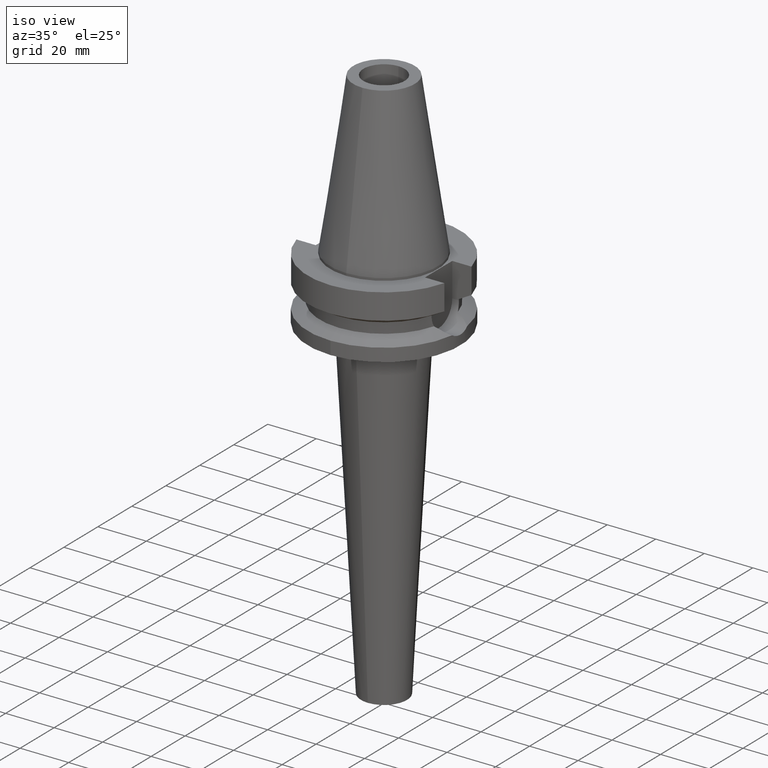
[diagram: clean part render]
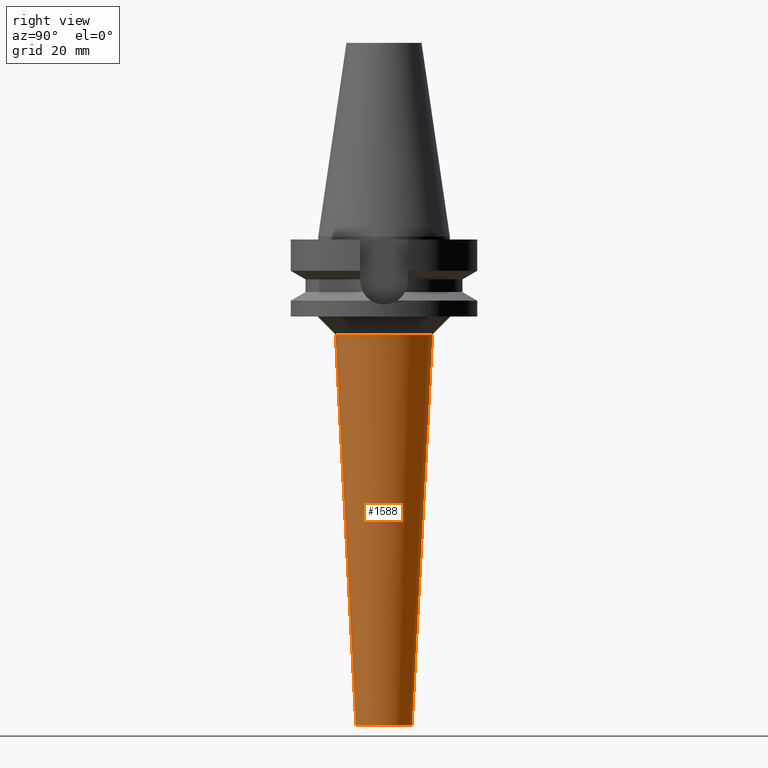
[diagram: tour spotlight — one face highlighted and labeled with its STEP entity id]
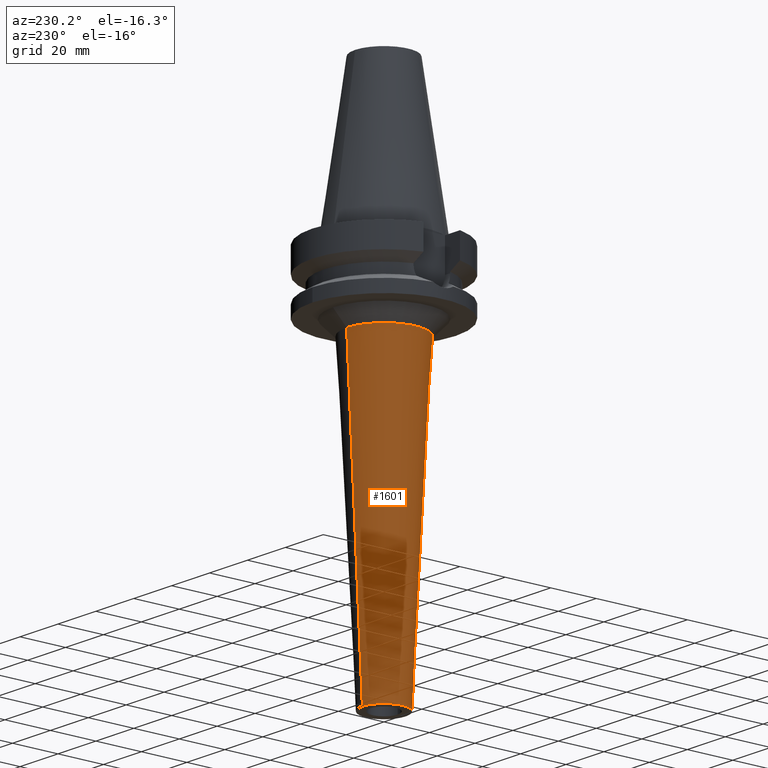
[diagram: tour spotlight — one face highlighted and labeled with its STEP entity id]
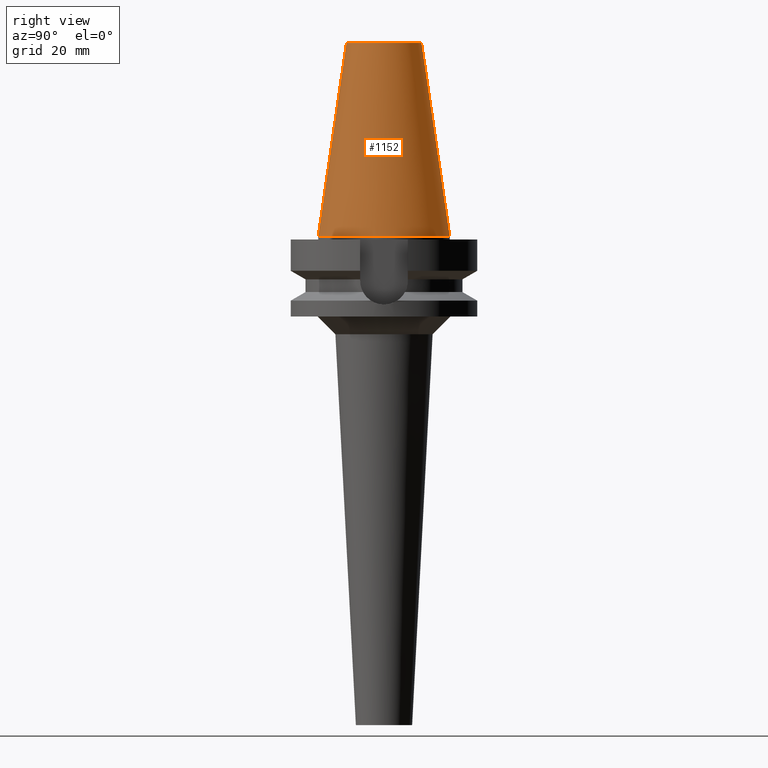
[diagram: tour spotlight — one face highlighted and labeled with its STEP entity id]
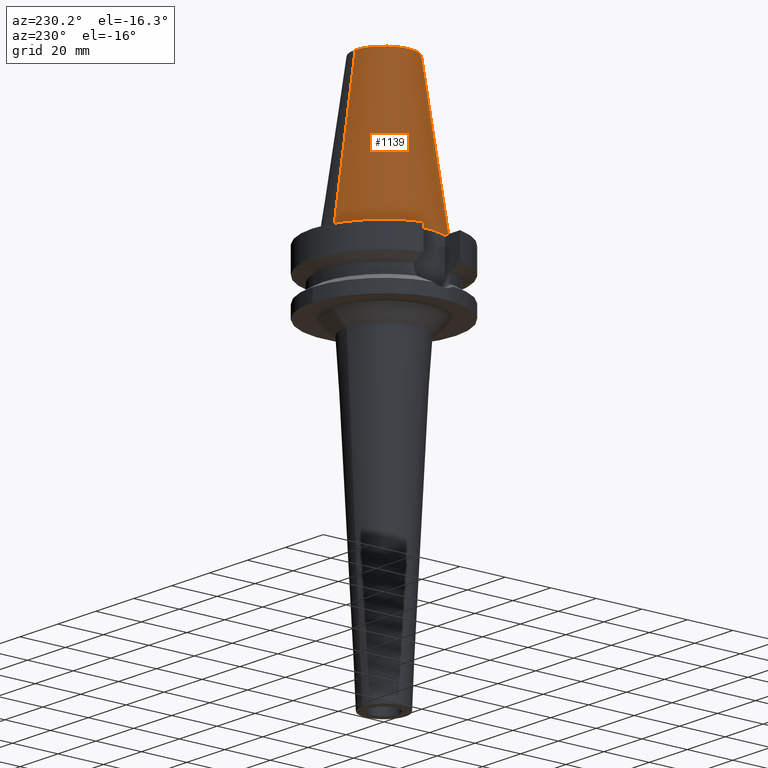
[diagram: tour spotlight — one face highlighted and labeled with its STEP entity id]
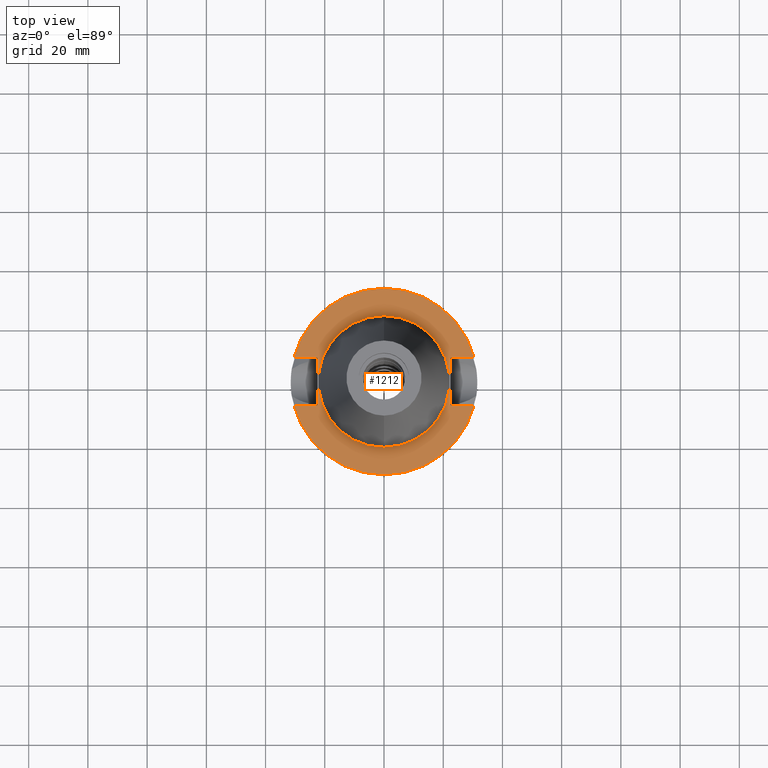
[diagram: tour spotlight — one face highlighted and labeled with its STEP entity id]
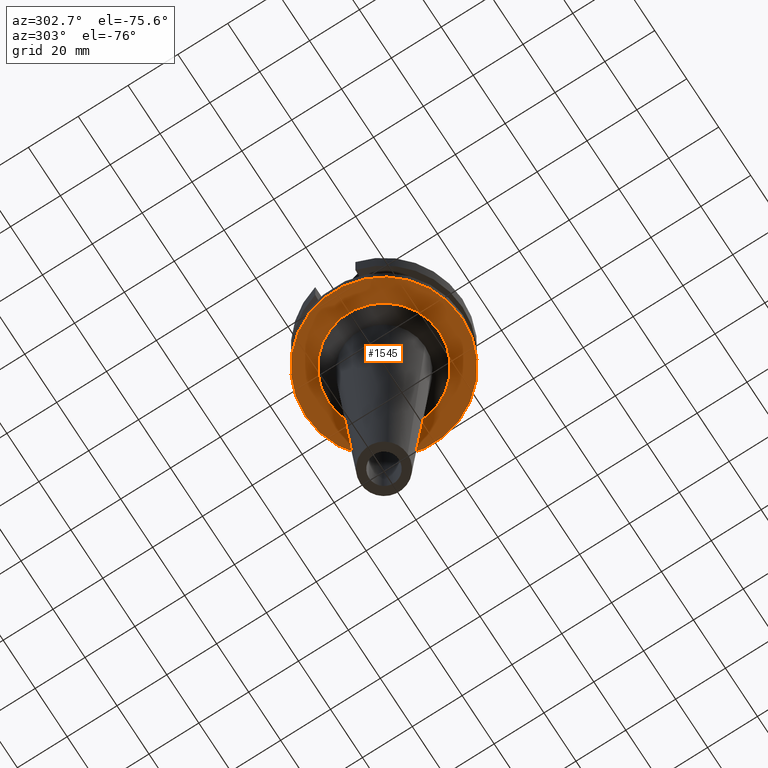
[diagram: tour spotlight — one face highlighted and labeled with its STEP entity id]
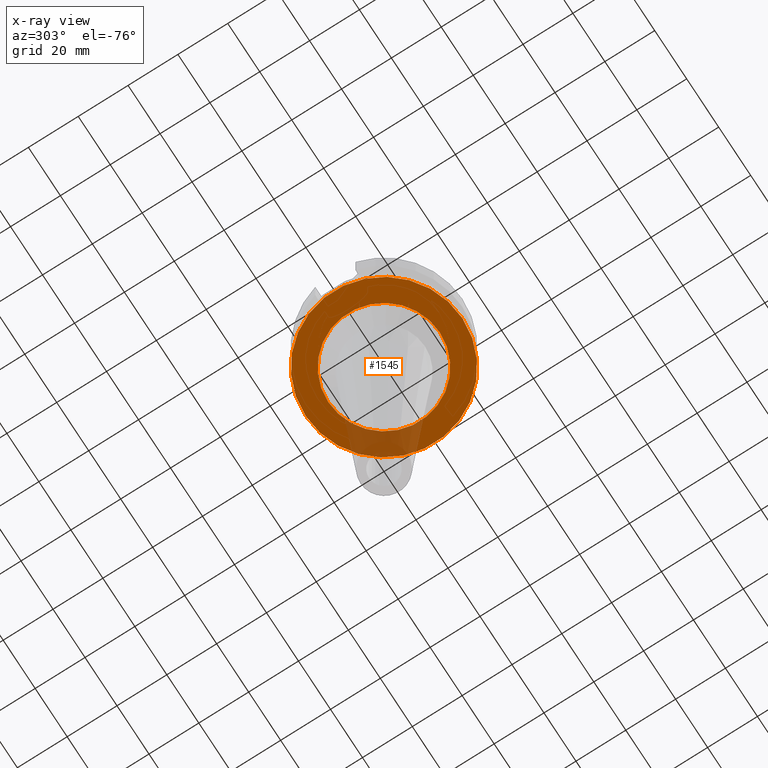
[diagram: x-ray of the same camera — body ghosted, this tour face saturated]
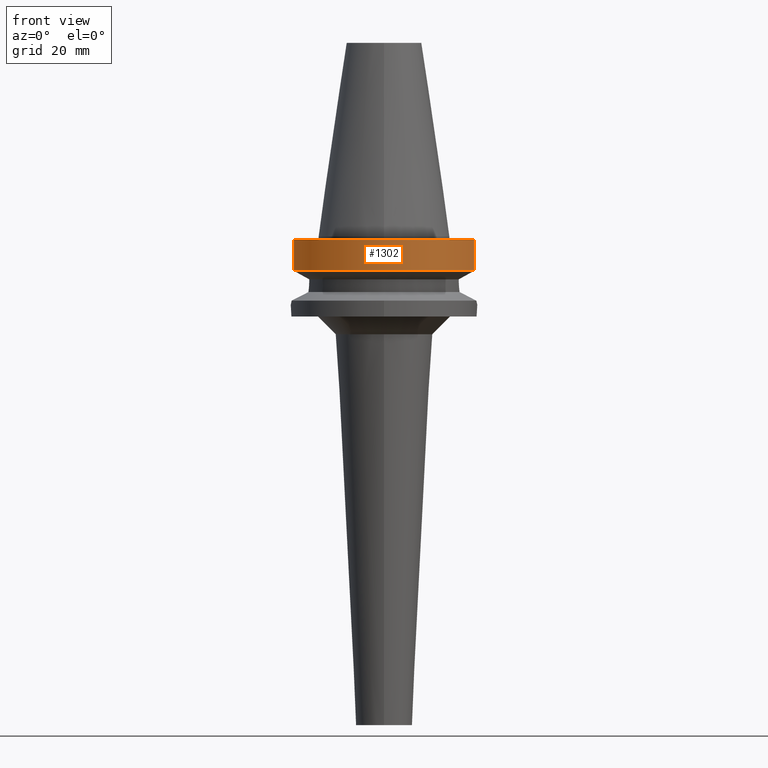
[diagram: tour spotlight — one face highlighted and labeled with its STEP entity id]
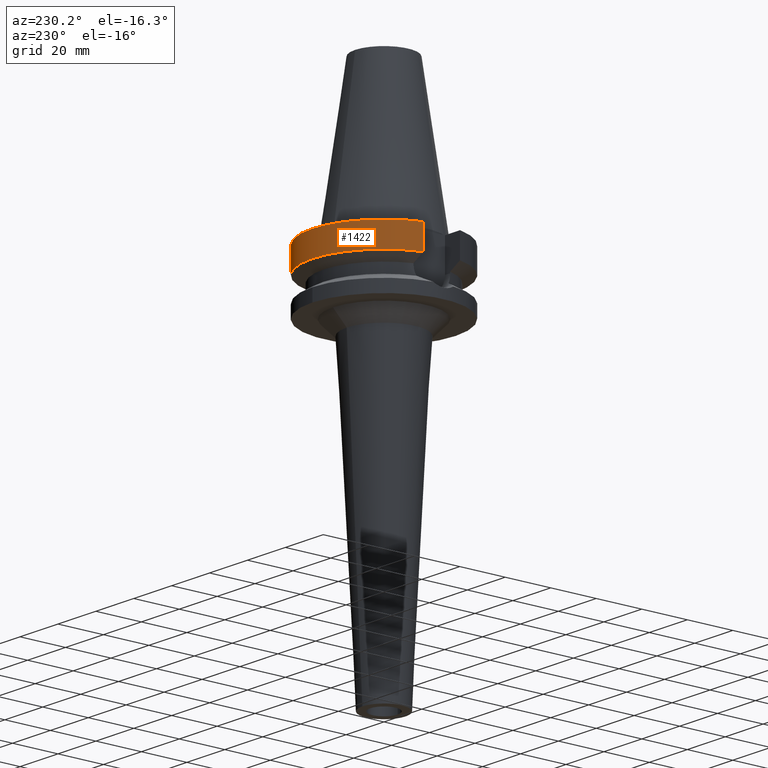
[diagram: tour spotlight — one face highlighted and labeled with its STEP entity id]
A machine part: a face-by-face anatomy tour. The part has 46 B-rep faces; the first image is the clean iso view, then the 8 largest visible faces are spotlighted one at a time (largest first), each with its STEP entity span.

Face 1 — right view, entity #1588. In plain terms, the highlighted conical surface has half-angle 3 deg.
Definition (entity closure, byte-faithful):
#676=DIRECTION('',(0.E0,-5.233595624294E-2,-9.986295347546E-1));
#677=VECTOR('',#676,1.321811496717E2);
#678=CARTESIAN_POINT('',(0.E0,1.641782686536E1,-3.3E1));
#679=LINE('',#678,#677);
#683=CARTESIAN_POINT('',(0.E0,0.E0,-3.3E1));
#684=DIRECTION('',(0.E0,0.E0,1.E0));
#685=DIRECTION('',(0.E0,-1.E0,0.E0));
#686=AXIS2_PLACEMENT_3D('',#683,#684,#685);
#691=DIRECTION('',(0.E0,5.233595624294E-2,-9.986295347546E-1));
#692=VECTOR('',#691,1.321811496717E2);
#693=CARTESIAN_POINT('',(0.E0,-1.641782686536E1,-3.3E1));
#694=LINE('',#693,#692);
#698=CARTESIAN_POINT('',(0.E0,0.E0,-1.65E2));
#699=DIRECTION('',(0.E0,0.E0,1.E0));
#700=DIRECTION('',(0.E0,-1.E0,0.E0));
#701=AXIS2_PLACEMENT_3D('',#698,#699,#700);
#1006=CARTESIAN_POINT('',(0.E0,-9.499999999999E0,-1.65E2));
#1007=CARTESIAN_POINT('',(0.E0,9.499999999999E0,-1.65E2));
#1008=VERTEX_POINT('',#1006);
#1009=VERTEX_POINT('',#1007);
#1010=CARTESIAN_POINT('',(0.E0,1.641782686536E1,-3.3E1));
#1011=VERTEX_POINT('',#1010);
#1012=CARTESIAN_POINT('',(0.E0,-1.641782686536E1,-3.3E1));
#1013=VERTEX_POINT('',#1012);
#1574=CARTESIAN_POINT('',(0.E0,0.E0,-9.9E1));
#1575=DIRECTION('',(0.E0,0.E0,1.E0));
#1576=DIRECTION('',(0.E0,1.E0,0.E0));
#1577=AXIS2_PLACEMENT_3D('',#1574,#1575,#1576);
#1578=CONICAL_SURFACE('',#1577,1.295891343268E1,3.E0);
#1580=ORIENTED_EDGE('',*,*,#1579,.T.);
#1582=ORIENTED_EDGE('',*,*,#1581,.F.);
#1584=ORIENTED_EDGE('',*,*,#1583,.F.);
#1585=ORIENTED_EDGE('',*,*,#1567,.T.);
#1586=EDGE_LOOP('',(#1580,#1582,#1584,#1585));
#1587=FACE_OUTER_BOUND('',#1586,.F.);
#687=CIRCLE('',#686,1.641782686536E1);
#702=CIRCLE('',#701,9.499999999999E0);
#1567=EDGE_CURVE('',#1013,#1011,#687,.T.);
#1579=EDGE_CURVE('',#1011,#1009,#679,.T.);
#1581=EDGE_CURVE('',#1008,#1009,#702,.T.);
#1583=EDGE_CURVE('',#1013,#1008,#694,.T.);
#1588=ADVANCED_FACE('',(#1587),#1578,.T.);

Face 2 — auxiliary view, entity #1601. In plain terms, the highlighted conical surface has half-angle 3 deg.
Definition (entity closure, byte-faithful):
#661=CARTESIAN_POINT('',(0.E0,0.E0,-3.3E1));
#662=DIRECTION('',(0.E0,0.E0,-1.E0));
#663=DIRECTION('',(0.E0,-1.E0,0.E0));
#664=AXIS2_PLACEMENT_3D('',#661,#662,#663);
#676=DIRECTION('',(0.E0,-5.233595624294E-2,-9.986295347546E-1));
#677=VECTOR('',#676,1.321811496717E2);
#678=CARTESIAN_POINT('',(0.E0,1.641782686536E1,-3.3E1));
#679=LINE('',#678,#677);
#691=DIRECTION('',(0.E0,5.233595624294E-2,-9.986295347546E-1));
#692=VECTOR('',#691,1.321811496717E2);
#693=CARTESIAN_POINT('',(0.E0,-1.641782686536E1,-3.3E1));
#694=LINE('',#693,#692);
#706=CARTESIAN_POINT('',(0.E0,0.E0,-1.65E2));
#707=DIRECTION('',(0.E0,0.E0,1.E0));
#708=DIRECTION('',(0.E0,1.E0,0.E0));
#709=AXIS2_PLACEMENT_3D('',#706,#707,#708);
#1006=CARTESIAN_POINT('',(0.E0,-9.499999999999E0,-1.65E2));
#1007=CARTESIAN_POINT('',(0.E0,9.499999999999E0,-1.65E2));
#1008=VERTEX_POINT('',#1006);
#1009=VERTEX_POINT('',#1007);
#1010=CARTESIAN_POINT('',(0.E0,1.641782686536E1,-3.3E1));
#1011=VERTEX_POINT('',#1010);
#1012=CARTESIAN_POINT('',(0.E0,-1.641782686536E1,-3.3E1));
#1013=VERTEX_POINT('',#1012);
#1589=CARTESIAN_POINT('',(0.E0,0.E0,-9.9E1));
#1590=DIRECTION('',(0.E0,0.E0,1.E0));
#1591=DIRECTION('',(0.E0,1.E0,0.E0));
#1592=AXIS2_PLACEMENT_3D('',#1589,#1590,#1591);
#1593=CONICAL_SURFACE('',#1592,1.295891343268E1,3.E0);
#1594=ORIENTED_EDGE('',*,*,#1579,.F.);
#1595=ORIENTED_EDGE('',*,*,#1556,.F.);
#1596=ORIENTED_EDGE('',*,*,#1583,.T.);
#1598=ORIENTED_EDGE('',*,*,#1597,.F.);
#1599=EDGE_LOOP('',(#1594,#1595,#1596,#1598));
#1600=FACE_OUTER_BOUND('',#1599,.F.);
#665=CIRCLE('',#664,1.641782686536E1);
#710=CIRCLE('',#709,9.499999999999E0);
#1556=EDGE_CURVE('',#1013,#1011,#665,.T.);
#1579=EDGE_CURVE('',#1011,#1009,#679,.T.);
#1583=EDGE_CURVE('',#1013,#1008,#694,.T.);
#1597=EDGE_CURVE('',#1009,#1008,#710,.T.);
#1601=ADVANCED_FACE('',(#1600),#1593,.T.);

Face 3 — right view, entity #1152. In plain terms, the highlighted conical surface has half-angle 8.297 deg.
Definition (entity closure, byte-faithful):
#26=CARTESIAN_POINT('',(0.E0,1.625106302469E-14,6.54E1));
#27=DIRECTION('',(0.E0,0.E0,-1.E0));
#28=DIRECTION('',(0.E0,1.E0,0.E0));
#29=AXIS2_PLACEMENT_3D('',#26,#27,#28);
#50=DIRECTION('',(0.E0,-1.443043893540E-1,-9.895333461856E-1));
#51=VECTOR('',#50,6.609175956738E1);
#52=CARTESIAN_POINT('',(0.E0,-1.268766899430E1,6.54E1));
#53=LINE('',#52,#51);
#65=DIRECTION('',(0.E0,1.443043893540E-1,-9.895333461856E-1));
#66=VECTOR('',#65,6.609175956738E1);
#67=CARTESIAN_POINT('',(0.E0,1.268766899430E1,6.54E1));
#68=LINE('',#67,#66);
#72=CARTESIAN_POINT('',(0.E0,1.625106302469E-14,2.842170943040E-14));
#73=DIRECTION('',(0.E0,0.E0,-1.E0));
#74=DIRECTION('',(0.E0,1.E0,0.E0));
#75=AXIS2_PLACEMENT_3D('',#72,#73,#74);
#958=CARTESIAN_POINT('',(0.E0,-1.268766899430E1,6.54E1));
#959=CARTESIAN_POINT('',(0.E0,1.268766899430E1,6.54E1));
#960=VERTEX_POINT('',#958);
#961=VERTEX_POINT('',#959);
#1095=CARTESIAN_POINT('',(0.E0,2.2225E1,6.394884621841E-14));
#1096=VERTEX_POINT('',#1095);
#1097=CARTESIAN_POINT('',(0.E0,-2.2225E1,6.394884621841E-14));
#1098=VERTEX_POINT('',#1097);
#1140=CARTESIAN_POINT('',(0.E0,1.625106302469E-14,3.27E1));
#1141=DIRECTION('',(0.E0,0.E0,-1.E0));
#1142=DIRECTION('',(0.E0,-1.E0,0.E0));
#1143=AXIS2_PLACEMENT_3D('',#1140,#1141,#1142);
#1144=CONICAL_SURFACE('',#1143,1.745633449715E1,8.297E0);
#1145=ORIENTED_EDGE('',*,*,#1130,.T.);
#1147=ORIENTED_EDGE('',*,*,#1146,.T.);
#1148=ORIENTED_EDGE('',*,*,#1133,.F.);
#1149=ORIENTED_EDGE('',*,*,#1114,.F.);
#1150=EDGE_LOOP('',(#1145,#1147,#1148,#1149));
#1151=FACE_OUTER_BOUND('',#1150,.F.);
#30=CIRCLE('',#29,1.268766899430E1);
#76=CIRCLE('',#75,2.2225E1);
#1114=EDGE_CURVE('',#961,#960,#30,.T.);
#1130=EDGE_CURVE('',#961,#1096,#68,.T.);
#1133=EDGE_CURVE('',#960,#1098,#53,.T.);
#1146=EDGE_CURVE('',#1096,#1098,#76,.T.);
#1152=ADVANCED_FACE('',(#1151),#1144,.T.);

Face 4 — auxiliary view, entity #1139. In plain terms, the highlighted conical surface has half-angle 8.297 deg.
Definition (entity closure, byte-faithful):
#17=CARTESIAN_POINT('',(0.E0,1.625106302469E-14,6.54E1));
#18=DIRECTION('',(0.E0,0.E0,-1.E0));
#19=DIRECTION('',(0.E0,-1.E0,0.E0));
#20=AXIS2_PLACEMENT_3D('',#17,#18,#19);
#50=DIRECTION('',(0.E0,-1.443043893540E-1,-9.895333461856E-1));
#51=VECTOR('',#50,6.609175956738E1);
#52=CARTESIAN_POINT('',(0.E0,-1.268766899430E1,6.54E1));
#53=LINE('',#52,#51);
#57=CARTESIAN_POINT('',(0.E0,1.625106302469E-14,2.842170943040E-14));
#58=DIRECTION('',(0.E0,0.E0,-1.E0));
#59=DIRECTION('',(0.E0,-1.E0,0.E0));
#60=AXIS2_PLACEMENT_3D('',#57,#58,#59);
#65=DIRECTION('',(0.E0,1.443043893540E-1,-9.895333461856E-1));
#66=VECTOR('',#65,6.609175956738E1);
#67=CARTESIAN_POINT('',(0.E0,1.268766899430E1,6.54E1));
#68=LINE('',#67,#66);
#958=CARTESIAN_POINT('',(0.E0,-1.268766899430E1,6.54E1));
#959=CARTESIAN_POINT('',(0.E0,1.268766899430E1,6.54E1));
#960=VERTEX_POINT('',#958);
#961=VERTEX_POINT('',#959);
#1095=CARTESIAN_POINT('',(0.E0,2.2225E1,6.394884621841E-14));
#1096=VERTEX_POINT('',#1095);
#1097=CARTESIAN_POINT('',(0.E0,-2.2225E1,6.394884621841E-14));
#1098=VERTEX_POINT('',#1097);
#1125=CARTESIAN_POINT('',(0.E0,1.625106302469E-14,3.27E1));
#1126=DIRECTION('',(0.E0,0.E0,-1.E0));
#1127=DIRECTION('',(0.E0,-1.E0,0.E0));
#1128=AXIS2_PLACEMENT_3D('',#1125,#1126,#1127);
#1129=CONICAL_SURFACE('',#1128,1.745633449715E1,8.297E0);
#1131=ORIENTED_EDGE('',*,*,#1130,.F.);
#1132=ORIENTED_EDGE('',*,*,#1112,.F.);
#1134=ORIENTED_EDGE('',*,*,#1133,.T.);
#1136=ORIENTED_EDGE('',*,*,#1135,.T.);
#1137=EDGE_LOOP('',(#1131,#1132,#1134,#1136));
#1138=FACE_OUTER_BOUND('',#1137,.F.);
#21=CIRCLE('',#20,1.268766899430E1);
#61=CIRCLE('',#60,2.2225E1);
#1112=EDGE_CURVE('',#960,#961,#21,.T.);
#1130=EDGE_CURVE('',#961,#1096,#68,.T.);
#1133=EDGE_CURVE('',#960,#1098,#53,.T.);
#1135=EDGE_CURVE('',#1098,#1096,#61,.T.);
#1139=ADVANCED_FACE('',(#1138),#1129,.T.);

Face 5 — top view, entity #1212. In plain terms, the highlighted planar face has unit normal (0, 0, -1).
Definition (entity closure, byte-faithful):
#94=DIRECTION('',(0.E0,1.E0,0.E0));
#95=VECTOR('',#94,1.61E1);
#96=CARTESIAN_POINT('',(-2.25E1,-8.05E0,-1.E0));
#97=LINE('',#96,#95);
#101=DIRECTION('',(-1.E0,-3.550916904668E-14,0.E0));
#102=VECTOR('',#101,7.954022722788E0);
#103=CARTESIAN_POINT('',(-2.25E1,8.05E0,-1.E0));
#104=LINE('',#103,#102);
#108=CARTESIAN_POINT('',(0.E0,2.166645117051E-14,-1.E0));
#109=DIRECTION('',(0.E0,0.E0,-1.E0));
#110=DIRECTION('',(-9.667943721520E-1,2.555555555556E-1,0.E0));
#111=AXIS2_PLACEMENT_3D('',#108,#109,#110);
#116=CARTESIAN_POINT('',(0.E0,2.166645117051E-14,-1.E0));
#117=DIRECTION('',(0.E0,0.E0,-1.E0));
#118=DIRECTION('',(0.E0,1.E0,0.E0));
#119=AXIS2_PLACEMENT_3D('',#116,#117,#118);
#124=DIRECTION('',(0.E0,-1.E0,0.E0));
#125=VECTOR('',#124,1.61E1);
#126=CARTESIAN_POINT('',(2.25E1,8.05E0,-1.E0));
#127=LINE('',#126,#125);
#131=DIRECTION('',(1.E0,3.573249715390E-14,0.E0));
#132=VECTOR('',#131,7.954022722788E0);
#133=CARTESIAN_POINT('',(2.25E1,-8.05E0,-1.E0));
#134=LINE('',#133,#132);
#138=CARTESIAN_POINT('',(0.E0,2.166645117051E-14,-1.E0));
#139=DIRECTION('',(0.E0,0.E0,-1.E0));
#140=DIRECTION('',(9.667943721520E-1,-2.555555555556E-1,0.E0));
#141=AXIS2_PLACEMENT_3D('',#138,#139,#140);
#146=CARTESIAN_POINT('',(0.E0,2.166645117051E-14,-1.E0));
#147=DIRECTION('',(0.E0,0.E0,-1.E0));
#148=DIRECTION('',(0.E0,-1.E0,0.E0));
#149=AXIS2_PLACEMENT_3D('',#146,#147,#148);
#154=CARTESIAN_POINT('',(0.E0,2.166645117051E-14,-1.E0));
#155=DIRECTION('',(0.E0,0.E0,1.E0));
#156=DIRECTION('',(0.E0,-1.E0,0.E0));
#157=AXIS2_PLACEMENT_3D('',#154,#155,#156);
#162=CARTESIAN_POINT('',(0.E0,2.166645117051E-14,-1.E0));
#163=DIRECTION('',(0.E0,0.E0,1.E0));
#164=DIRECTION('',(0.E0,1.E0,0.E0));
#165=AXIS2_PLACEMENT_3D('',#162,#163,#164);
#200=DIRECTION('',(-1.E0,3.550916904668E-14,0.E0));
#201=VECTOR('',#200,7.954022722788E0);
#202=CARTESIAN_POINT('',(-2.25E1,-8.05E0,-1.E0));
#203=LINE('',#202,#201);
#337=DIRECTION('',(1.E0,-3.506251283226E-14,0.E0));
#338=VECTOR('',#337,7.954022722788E0);
#339=CARTESIAN_POINT('',(2.25E1,8.05E0,-1.E0));
#340=LINE('',#339,#338);
#1069=CARTESIAN_POINT('',(-2.25E1,-8.05E0,-1.E0));
#1070=VERTEX_POINT('',#1069);
#1071=CARTESIAN_POINT('',(-3.045402272279E1,-8.05E0,-1.E0));
#1072=VERTEX_POINT('',#1071);
#1075=CARTESIAN_POINT('',(-2.25E1,8.05E0,-1.E0));
#1076=VERTEX_POINT('',#1075);
#1077=CARTESIAN_POINT('',(-3.045402272279E1,8.05E0,-1.E0));
#1078=VERTEX_POINT('',#1077);
#1079=CARTESIAN_POINT('',(-3.046064939756E-14,3.15E1,-1.E0));
#1080=CARTESIAN_POINT('',(3.045402272279E1,8.05E0,-1.E0));
#1081=VERTEX_POINT('',#1079);
#1082=VERTEX_POINT('',#1080);
#1083=CARTESIAN_POINT('',(2.25E1,8.05E0,-1.E0));
#1084=VERTEX_POINT('',#1083);
#1085=CARTESIAN_POINT('',(2.25E1,-8.05E0,-1.E0));
#1086=VERTEX_POINT('',#1085);
#1087=CARTESIAN_POINT('',(3.045402272279E1,-8.05E0,-1.E0));
#1088=VERTEX_POINT('',#1087);
#1089=CARTESIAN_POINT('',(3.046064939756E-14,-3.15E1,-1.E0));
#1090=VERTEX_POINT('',#1089);
#1091=CARTESIAN_POINT('',(0.E0,-2.2225E1,-1.E0));
#1092=CARTESIAN_POINT('',(0.E0,2.2225E1,-1.E0));
#1093=VERTEX_POINT('',#1091);
#1094=VERTEX_POINT('',#1092);
#1181=CARTESIAN_POINT('',(0.E0,1.212400331156E-14,-1.E0));
#1182=DIRECTION('',(0.E0,0.E0,-1.E0));
#1183=DIRECTION('',(0.E0,-1.E0,0.E0));
#1184=AXIS2_PLACEMENT_3D('',#1181,#1182,#1183);
#1185=PLANE('',#1184);
#1187=ORIENTED_EDGE('',*,*,#1186,.T.);
#1189=ORIENTED_EDGE('',*,*,#1188,.T.);
#1191=ORIENTED_EDGE('',*,*,#1190,.T.);
#1193=ORIENTED_EDGE('',*,*,#1192,.T.);
#1195=ORIENTED_EDGE('',*,*,#1194,.F.);
#1197=ORIENTED_EDGE('',*,*,#1196,.T.);
#1199=ORIENTED_EDGE('',*,*,#1198,.T.);
#1201=ORIENTED_EDGE('',*,*,#1200,.T.);
#1203=ORIENTED_EDGE('',*,*,#1202,.T.);
#1205=ORIENTED_EDGE('',*,*,#1204,.F.);
#1206=EDGE_LOOP('',(#1187,#1189,#1191,#1193,#1195,#1197,#1199,#1201,#1203,
#1205));
#1207=FACE_OUTER_BOUND('',#1206,.F.);
#1208=ORIENTED_EDGE('',*,*,#1160,.T.);
#1209=ORIENTED_EDGE('',*,*,#1176,.T.);
#1210=EDGE_LOOP('',(#1208,#1209));
#1211=FACE_BOUND('',#1210,.F.);
#112=CIRCLE('',#111,3.15E1);
#120=CIRCLE('',#119,3.15E1);
#142=CIRCLE('',#141,3.15E1);
#150=CIRCLE('',#149,3.15E1);
#158=CIRCLE('',#157,2.2225E1);
#166=CIRCLE('',#165,2.2225E1);
#1160=EDGE_CURVE('',#1093,#1094,#158,.T.);
#1176=EDGE_CURVE('',#1094,#1093,#166,.T.);
#1186=EDGE_CURVE('',#1070,#1076,#97,.T.);
#1188=EDGE_CURVE('',#1076,#1078,#104,.T.);
#1190=EDGE_CURVE('',#1078,#1081,#112,.T.);
#1192=EDGE_CURVE('',#1081,#1082,#120,.T.);
#1194=EDGE_CURVE('',#1084,#1082,#340,.T.);
#1196=EDGE_CURVE('',#1084,#1086,#127,.T.);
#1198=EDGE_CURVE('',#1086,#1088,#134,.T.);
#1200=EDGE_CURVE('',#1088,#1090,#142,.T.);
#1202=EDGE_CURVE('',#1090,#1072,#150,.T.);
#1204=EDGE_CURVE('',#1070,#1072,#203,.T.);
#1212=ADVANCED_FACE('',(#1207,#1211),#1185,.F.);

Face 6 — auxiliary view, entity #1545. An x-ray twin of the same camera follows (body ghosted, this face saturated) — the face is partly hidden behind the body. In plain terms, the highlighted planar face has unit normal (0, 0, -1).
Definition (entity closure, byte-faithful):
#622=CARTESIAN_POINT('',(0.E0,2.166645117051E-14,-2.7E1));
#623=DIRECTION('',(0.E0,0.E0,1.E0));
#624=DIRECTION('',(0.E0,-1.E0,0.E0));
#625=AXIS2_PLACEMENT_3D('',#622,#623,#624);
#630=CARTESIAN_POINT('',(0.E0,2.166645117051E-14,-2.7E1));
#631=DIRECTION('',(0.E0,0.E0,1.E0));
#632=DIRECTION('',(0.E0,1.E0,0.E0));
#633=AXIS2_PLACEMENT_3D('',#630,#631,#632);
#638=CARTESIAN_POINT('',(0.E0,0.E0,-2.7E1));
#639=DIRECTION('',(0.E0,0.E0,-1.E0));
#640=DIRECTION('',(0.E0,-1.E0,0.E0));
#641=AXIS2_PLACEMENT_3D('',#638,#639,#640);
#646=CARTESIAN_POINT('',(0.E0,0.E0,-2.7E1));
#647=DIRECTION('',(0.E0,0.E0,-1.E0));
#648=DIRECTION('',(0.E0,1.E0,0.E0));
#649=AXIS2_PLACEMENT_3D('',#646,#647,#648);
#1014=CARTESIAN_POINT('',(0.E0,2.241782686536E1,-2.7E1));
#1015=VERTEX_POINT('',#1014);
#1016=CARTESIAN_POINT('',(0.E0,-2.241782686536E1,-2.7E1));
#1017=VERTEX_POINT('',#1016);
#1018=CARTESIAN_POINT('',(0.E0,-3.15E1,-2.7E1));
#1019=CARTESIAN_POINT('',(0.E0,3.15E1,-2.7E1));
#1020=VERTEX_POINT('',#1018);
#1021=VERTEX_POINT('',#1019);
#1530=CARTESIAN_POINT('',(0.E0,0.E0,-2.7E1));
#1531=DIRECTION('',(0.E0,0.E0,-1.E0));
#1532=DIRECTION('',(0.E0,-1.E0,0.E0));
#1533=AXIS2_PLACEMENT_3D('',#1530,#1531,#1532);
#1534=PLANE('',#1533);
#1535=ORIENTED_EDGE('',*,*,#1492,.T.);
#1536=ORIENTED_EDGE('',*,*,#1523,.T.);
#1537=EDGE_LOOP('',(#1535,#1536));
#1538=FACE_OUTER_BOUND('',#1537,.F.);
#1540=ORIENTED_EDGE('',*,*,#1539,.T.);
#1542=ORIENTED_EDGE('',*,*,#1541,.T.);
#1543=EDGE_LOOP('',(#1540,#1542));
#1544=FACE_BOUND('',#1543,.F.);
#626=CIRCLE('',#625,3.15E1);
#634=CIRCLE('',#633,3.15E1);
#642=CIRCLE('',#641,2.241782686536E1);
#650=CIRCLE('',#649,2.241782686536E1);
#1492=EDGE_CURVE('',#1020,#1021,#626,.T.);
#1523=EDGE_CURVE('',#1021,#1020,#634,.T.);
#1539=EDGE_CURVE('',#1017,#1015,#642,.T.);
#1541=EDGE_CURVE('',#1015,#1017,#650,.T.);
#1545=ADVANCED_FACE('',(#1538,#1544),#1534,.T.);

Face 7 — front view, entity #1302. In plain terms, the highlighted cylindrical surface (partial cylindrical patch) has radius 31.5 mm, axis along (0, 0, -1).
Definition (entity closure, byte-faithful):
#138=CARTESIAN_POINT('',(0.E0,2.166645117051E-14,-1.E0));
#139=DIRECTION('',(0.E0,0.E0,-1.E0));
#140=DIRECTION('',(9.667943721520E-1,-2.555555555556E-1,0.E0));
#141=AXIS2_PLACEMENT_3D('',#138,#139,#140);
#146=CARTESIAN_POINT('',(0.E0,2.166645117051E-14,-1.E0));
#147=DIRECTION('',(0.E0,0.E0,-1.E0));
#148=DIRECTION('',(0.E0,-1.E0,0.E0));
#149=AXIS2_PLACEMENT_3D('',#146,#147,#148);
#251=CARTESIAN_POINT('',(0.E0,1.065333950388E-14,-1.156550565267E1));
#252=DIRECTION('',(0.E0,0.E0,1.E0));
#253=DIRECTION('',(-9.667943721520E-1,-2.555555555555E-1,0.E0));
#254=AXIS2_PLACEMENT_3D('',#251,#252,#253);
#259=CARTESIAN_POINT('',(0.E0,1.065333950388E-14,-1.156550565267E1));
#260=DIRECTION('',(0.E0,0.E0,1.E0));
#261=DIRECTION('',(0.E0,-1.E0,0.E0));
#262=AXIS2_PLACEMENT_3D('',#259,#260,#261);
#283=DIRECTION('',(1.805835241064E-8,-6.831694115687E-8,1.E0));
#284=VECTOR('',#283,1.056551215380E1);
#285=CARTESIAN_POINT('',(-3.045402291358E1,-8.049999278196E0,
-1.156551215380E1));
#286=LINE('',#285,#284);
#290=DIRECTION('',(-1.036649194657E-7,-3.921750933745E-7,-9.999999999999E-1));
#291=VECTOR('',#290,1.056546832966E1);
#292=CARTESIAN_POINT('',(3.045402272279E1,-8.05E0,-1.E0));
#293=LINE('',#292,#291);
#1071=CARTESIAN_POINT('',(-3.045402272279E1,-8.05E0,-1.E0));
#1072=VERTEX_POINT('',#1071);
#1073=CARTESIAN_POINT('',(-3.045402291358E1,-8.049999278196E0,
-1.156551215380E1));
#1074=VERTEX_POINT('',#1073);
#1087=CARTESIAN_POINT('',(3.045402272279E1,-8.05E0,-1.E0));
#1088=VERTEX_POINT('',#1087);
#1089=CARTESIAN_POINT('',(3.046064939756E-14,-3.15E1,-1.E0));
#1090=VERTEX_POINT('',#1089);
#1100=CARTESIAN_POINT('',(0.E0,-3.15E1,-1.156550565267E1));
#1101=CARTESIAN_POINT('',(3.045402272279E1,-8.049999999999E0,
-1.156550565267E1));
#1102=VERTEX_POINT('',#1100);
#1103=VERTEX_POINT('',#1101);
#1288=CARTESIAN_POINT('',(0.E0,2.166645117051E-14,7.692E1));
#1289=DIRECTION('',(0.E0,0.E0,-1.E0));
#1290=DIRECTION('',(0.E0,-1.E0,0.E0));
#1291=AXIS2_PLACEMENT_3D('',#1288,#1289,#1290);
#1292=CYLINDRICAL_SURFACE('',#1291,3.15E1);
#1293=ORIENTED_EDGE('',*,*,#1241,.T.);
#1294=ORIENTED_EDGE('',*,*,#1202,.F.);
#1295=ORIENTED_EDGE('',*,*,#1200,.F.);
#1297=ORIENTED_EDGE('',*,*,#1296,.T.);
#1298=ORIENTED_EDGE('',*,*,#1279,.F.);
#1299=ORIENTED_EDGE('',*,*,#1277,.F.);
#1300=EDGE_LOOP('',(#1293,#1294,#1295,#1297,#1298,#1299));
#1301=FACE_OUTER_BOUND('',#1300,.F.);
#142=CIRCLE('',#141,3.15E1);
#150=CIRCLE('',#149,3.15E1);
#255=CIRCLE('',#254,3.15E1);
#263=CIRCLE('',#262,3.15E1);
#1200=EDGE_CURVE('',#1088,#1090,#142,.T.);
#1202=EDGE_CURVE('',#1090,#1072,#150,.T.);
#1241=EDGE_CURVE('',#1074,#1072,#286,.T.);
#1277=EDGE_CURVE('',#1074,#1102,#255,.T.);
#1279=EDGE_CURVE('',#1102,#1103,#263,.T.);
#1296=EDGE_CURVE('',#1088,#1103,#293,.T.);
#1302=ADVANCED_FACE('',(#1301),#1292,.T.);

Face 8 — auxiliary view, entity #1422. In plain terms, the highlighted cylindrical surface (partial cylindrical patch) has radius 31.5 mm, axis along (0, 0, -1).
Definition (entity closure, byte-faithful):
#108=CARTESIAN_POINT('',(0.E0,2.166645117051E-14,-1.E0));
#109=DIRECTION('',(0.E0,0.E0,-1.E0));
#110=DIRECTION('',(-9.667943721520E-1,2.555555555556E-1,0.E0));
#111=AXIS2_PLACEMENT_3D('',#108,#109,#110);
#116=CARTESIAN_POINT('',(0.E0,2.166645117051E-14,-1.E0));
#117=DIRECTION('',(0.E0,0.E0,-1.E0));
#118=DIRECTION('',(0.E0,1.E0,0.E0));
#119=AXIS2_PLACEMENT_3D('',#116,#117,#118);
#344=CARTESIAN_POINT('',(3.045402291366E1,8.049999277900E0,-1.156551215647E1));
#393=CARTESIAN_POINT('',(-3.045402162753E1,8.050004143464E0,-1.156546833011E1));
#414=CARTESIAN_POINT('',(0.E0,1.065333950388E-14,-1.156550565267E1));
#415=DIRECTION('',(0.E0,0.E0,1.E0));
#416=DIRECTION('',(9.667943721520E-1,2.555555555555E-1,0.E0));
#417=AXIS2_PLACEMENT_3D('',#414,#415,#416);
#422=CARTESIAN_POINT('',(0.E0,1.065333950388E-14,-1.156550565267E1));
#423=DIRECTION('',(0.E0,0.E0,1.E0));
#424=DIRECTION('',(0.E0,1.E0,0.E0));
#425=AXIS2_PLACEMENT_3D('',#422,#423,#424);
#430=DIRECTION('',(1.036636847253E-7,3.921704262777E-7,-9.999999999999E-1));
#431=VECTOR('',#430,1.056546833011E1);
#432=CARTESIAN_POINT('',(-3.045402272279E1,8.05E0,-1.E0));
#433=LINE('',#432,#431);
#437=DIRECTION('',(-1.806576684425E-8,6.834499276694E-8,1.E0));
#438=VECTOR('',#437,1.056551215647E1);
#439=CARTESIAN_POINT('',(3.045402291366E1,8.049999277900E0,-1.156551215647E1));
#440=LINE('',#439,#438);
#1077=CARTESIAN_POINT('',(-3.045402272279E1,8.05E0,-1.E0));
#1078=VERTEX_POINT('',#1077);
#1079=CARTESIAN_POINT('',(-3.046064939756E-14,3.15E1,-1.E0));
#1080=CARTESIAN_POINT('',(3.045402272279E1,8.05E0,-1.E0));
#1081=VERTEX_POINT('',#1079);
#1082=VERTEX_POINT('',#1080);
#1099=VERTEX_POINT('',#393);
#1104=VERTEX_POINT('',#344);
#1105=CARTESIAN_POINT('',(0.E0,3.15E1,-1.156550565267E1));
#1106=VERTEX_POINT('',#1105);
#1409=CARTESIAN_POINT('',(0.E0,2.166645117051E-14,7.692E1));
#1410=DIRECTION('',(0.E0,0.E0,-1.E0));
#1411=DIRECTION('',(0.E0,-1.E0,0.E0));
#1412=AXIS2_PLACEMENT_3D('',#1409,#1410,#1411);
#1413=CYLINDRICAL_SURFACE('',#1412,3.15E1);
#1414=ORIENTED_EDGE('',*,*,#1384,.T.);
#1415=ORIENTED_EDGE('',*,*,#1404,.F.);
#1416=ORIENTED_EDGE('',*,*,#1402,.F.);
#1417=ORIENTED_EDGE('',*,*,#1346,.T.);
#1418=ORIENTED_EDGE('',*,*,#1192,.F.);
#1419=ORIENTED_EDGE('',*,*,#1190,.F.);
#1420=EDGE_LOOP('',(#1414,#1415,#1416,#1417,#1418,#1419));
#1421=FACE_OUTER_BOUND('',#1420,.F.);
#112=CIRCLE('',#111,3.15E1);
#120=CIRCLE('',#119,3.15E1);
#418=CIRCLE('',#417,3.15E1);
#426=CIRCLE('',#425,3.15E1);
#1190=EDGE_CURVE('',#1078,#1081,#112,.T.);
#1192=EDGE_CURVE('',#1081,#1082,#120,.T.);
#1346=EDGE_CURVE('',#1104,#1082,#440,.T.);
#1384=EDGE_CURVE('',#1078,#1099,#433,.T.);
#1402=EDGE_CURVE('',#1104,#1106,#418,.T.);
#1404=EDGE_CURVE('',#1106,#1099,#426,.T.);
#1422=ADVANCED_FACE('',(#1421),#1413,.T.);